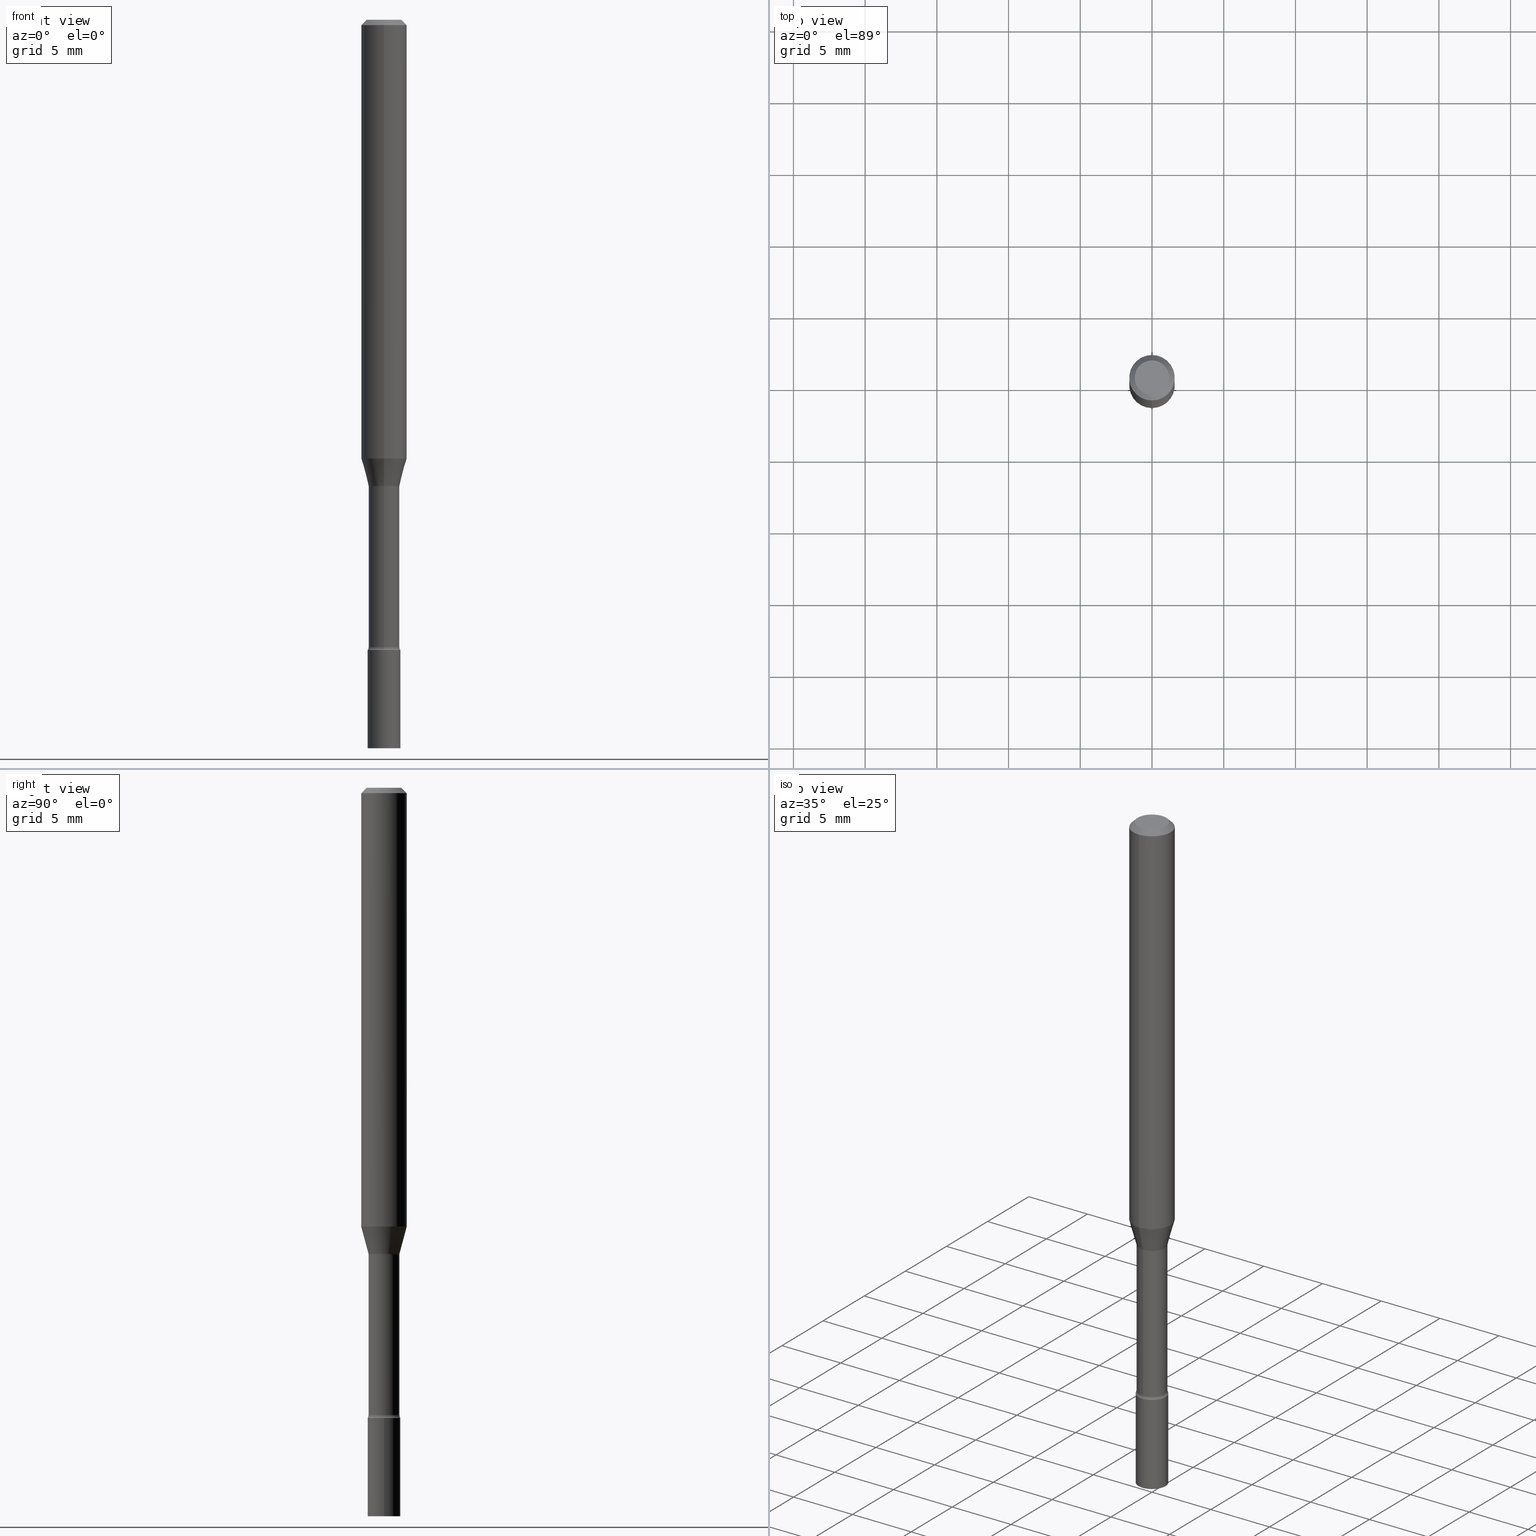
[diagram: canonical four-view strip — front | top / right | iso, engineering-drawing reading convention]
A machine part, canonical four-view strip (front | top / right | iso — engineering-drawing reading convention). The complete STEP part file that produces these views, byte-faithful:
ISO-10303-21;
HEADER;
FILE_DESCRIPTION (( 'STEP AP203' ),
    '1' );
FILE_NAME ('04286.STEP',
    '2024-03-08T22:51:13',
    ( '' ),
    ( '' ),
    'SwSTEP 2.0',
    'SolidWorks 2023',
    '' );
FILE_SCHEMA (( 'CONFIG_CONTROL_DESIGN' ));
ENDSEC;

DATA;
#1 = CARTESIAN_POINT ( 'NONE',  ( 3.316907271900976096E-16, 0.04749999999999999362, -1.802990644847437525E-16 ) ) ;
#2 = CYLINDRICAL_SURFACE ( 'NONE', #75, 0.04229999999999999732 ) ;
#3 = ORIENTED_EDGE ( 'NONE', *, *, #391, .T. ) ;
#4 = CIRCLE ( 'NONE', #222, 0.04499999999999999833 ) ;
#5 = AXIS2_PLACEMENT_3D ( 'NONE', #192, #87, #38 ) ;
#6 = PRODUCT_DEFINITION_SHAPE ( 'NONE', 'NONE',  #90 ) ;
#7 = CARTESIAN_POINT ( 'NONE',  ( 4.440892098500921985E-16, 0.06249999999999582279, -1.204612573687109167 ) ) ;
#8 = CALENDAR_DATE ( 2024, 8, 3 ) ;
#9 = EDGE_CURVE ( 'NONE', #494, #47, #237, .T. ) ;
#10 = PERSON_AND_ORGANIZATION_ROLE ( 'design_owner' ) ;
#11 = ORIENTED_EDGE ( 'NONE', *, *, #72, .F. ) ;
#12 = EDGE_CURVE ( 'NONE', #370, #306, #235, .T. ) ;
#13 = AXIS2_PLACEMENT_3D ( 'NONE', #154, #389, #132 ) ;
#14 = CIRCLE ( 'NONE', #342, 0.04499999999999999833 ) ;
#15 = ORIENTED_EDGE ( 'NONE', *, *, #63, .T. ) ;
#16 = ORIENTED_EDGE ( 'NONE', *, *, #207, .F. ) ;
#17 = CARTESIAN_POINT ( 'NONE',  ( 4.230661034700285954E-29, -6.040262716198641373E-15, -1.729999999999999760 ) ) ;
#18 = APPROVAL_ROLE ( '' ) ;
#19 = EDGE_LOOP ( 'NONE', ( #54, #221 ) ) ;
#20 = FACE_OUTER_BOUND ( 'NONE', #105, .T. ) ;
#21 = CIRCLE ( 'NONE', #145, 0.04749999999999999362 ) ;
#22 = AXIS2_PLACEMENT_3D ( 'NONE', #156, #106, #313 ) ;
#23 = ORIENTED_EDGE ( 'NONE', *, *, #12, .F. ) ;
#24 = DIRECTION ( 'NONE',  ( -6.982962677686265133E-15, -1.000000000000000000, 6.458269488567996591E-15 ) ) ;
#25 = APPROVAL_DATE_TIME ( #512, #193 ) ;
#26 = CARTESIAN_POINT ( 'NONE',  ( 4.209830301234384411E-29, -6.010050874383000873E-15, -1.721414547187247290 ) ) ;
#27 = CALENDAR_DATE ( 2024, 8, 3 ) ;
#28 = ORIENTED_EDGE ( 'NONE', *, *, #111, .T. ) ;
#29 = CARTESIAN_POINT ( 'NONE',  ( -4.287811248607203282E-16, -0.06250000000000005551, -0.01499999999999981209 ) ) ;
#30 = DIRECTION ( 'NONE',  ( 1.000000000000000000, -7.105427357601001070E-15, 4.926313830350955561E-29 ) ) ;
#31 = CARTESIAN_POINT ( 'NONE',  ( -4.364351673553619392E-16, -0.06250000000000417721, -1.204612573687108723 ) ) ;
#32 = TOROIDAL_SURFACE ( 'NONE', #334, 0.05730000000000000371, 0.01500000000000003240 ) ;
#33 = CARTESIAN_POINT ( 'NONE',  ( 4.890937612370273194E-29, -6.982962677686291165E-15, -2.000000000000000000 ) ) ;
#34 = LINE ( 'NONE', #324, #341 ) ;
#35 = DIRECTION ( 'NONE',  ( 1.000000000000000000, -6.982962677686269077E-15, 0.000000000000000000 ) ) ;
#36 = CARTESIAN_POINT ( 'NONE',  ( 0.04499999999999999833, -7.297195998182173641E-15, -2.000000000000000000 ) ) ;
#37 = DIRECTION ( 'NONE',  ( -2.445564497008087352E-29, 3.491344304138296135E-15, 1.000000000000000000 ) ) ;
#38 = DIRECTION ( 'NONE',  ( -6.982962677686265922E-15, -1.000000000000000000, 3.483106191921935554E-15 ) ) ;
#39 = EDGE_CURVE ( 'NONE', #98, #306, #128, .T. ) ;
#40 = CIRCLE ( 'NONE', #397, 0.01500000000000003587 ) ;
#41 = CARTESIAN_POINT ( 'NONE',  ( -4.001237614313916575E-16, -0.05730000000000447929, -1.281974787463810772 ) ) ;
#42 = LINE ( 'NONE', #401, #146 ) ;
#43 = ORIENTED_EDGE ( 'NONE', *, *, #516, .T. ) ;
#44 = CC_DESIGN_PERSON_AND_ORGANIZATION_ASSIGNMENT ( #114, #415, ( #174 ) ) ;
#45 = CARTESIAN_POINT ( 'NONE',  ( -4.364351673553912750E-16, -0.06250000000000005551, -0.01499999999999981209 ) ) ;
#46 =( NAMED_UNIT ( * ) SI_UNIT ( $, .STERADIAN. ) SOLID_ANGLE_UNIT ( ) );
#47 = VERTEX_POINT ( 'NONE', #31 ) ;
#48 = CARTESIAN_POINT ( 'NONE',  ( 3.840629472727447874E-16, 0.04749999999999999362, -1.947592745229183872E-16 ) ) ;
#49 = ORIENTED_EDGE ( 'NONE', *, *, #325, .T. ) ;
#50 = AXIS2_PLACEMENT_3D ( 'NONE', #414, #491, #338 ) ;
#51 = VECTOR ( 'NONE', #233, 39.37007874015748143 ) ;
#52 = PERSON_AND_ORGANIZATION ( #420, #323 ) ;
#53 = CARTESIAN_POINT ( 'NONE',  ( 4.071409875905687408E-16, 0.05729999999999552812, -1.281974787463811216 ) ) ;
#54 = ORIENTED_EDGE ( 'NONE', *, *, #391, .F. ) ;
#55 = DATE_AND_TIME ( #8, #110 ) ;
#56 = ORIENTED_EDGE ( 'NONE', *, *, #226, .T. ) ;
#57 = AXIS2_PLACEMENT_3D ( 'NONE', #427, #121, #435 ) ;
#58 = SECURITY_CLASSIFICATION ( '', '', #69 ) ;
#59 = ORIENTED_EDGE ( 'NONE', *, *, #224, .F. ) ;
#60 = APPROVAL_STATUS ( 'not_yet_approved' ) ;
#61 = ORIENTED_EDGE ( 'NONE', *, *, #79, .F. ) ;
#62 = FACE_OUTER_BOUND ( 'NONE', #89, .T. ) ;
#63 = EDGE_CURVE ( 'NONE', #140, #370, #443, .T. ) ;
#64 = ORIENTED_EDGE ( 'NONE', *, *, #157, .F. ) ;
#65 = DIRECTION ( 'NONE',  ( -2.445564497008087352E-29, 3.491344304138296530E-15, 1.000000000000000000 ) ) ;
#66 = CIRCLE ( 'NONE', #404, 0.06250000000000000000 ) ;
#67 = CARTESIAN_POINT ( 'NONE',  ( -2.989484015155442854E-16, -0.04281111260566843740, -1.278092501787272850 ) ) ;
#68 = DIRECTION ( 'NONE',  ( -6.982962677686265133E-15, -1.000000000000000000, 6.381165607227960443E-15 ) ) ;
#69 = SECURITY_CLASSIFICATION_LEVEL ( 'unclassified' ) ;
#70 = VERTEX_POINT ( 'NONE', #468 ) ;
#71 = EDGE_LOOP ( 'NONE', ( #451, #416, #147, #301 ) ) ;
#72 = EDGE_CURVE ( 'NONE', #153, #309, #240, .T. ) ;
#73 = DIRECTION ( 'NONE',  ( -2.445564497008087352E-29, 3.491344304138296135E-15, 1.000000000000000000 ) ) ;
#74 = CIRCLE ( 'NONE', #488, 0.04499999999999999833 ) ;
#75 = AXIS2_PLACEMENT_3D ( 'NONE', #477, #368, #332 ) ;
#76 = CARTESIAN_POINT ( 'NONE',  ( 4.890937612370273194E-29, -6.982962677686291165E-15, -2.000000000000000000 ) ) ;
#77 = DIRECTION ( 'NONE',  ( 2.445564497008087352E-29, -3.491344304138296530E-15, -1.000000000000000000 ) ) ;
#78 = DIRECTION ( 'NONE',  ( -1.000000000000000000, 6.982962677686265922E-15, -4.883557194083112340E-29 ) ) ;
#79 = EDGE_CURVE ( 'NONE', #430, #70, #4, .T. ) ;
#80 = DIRECTION ( 'NONE',  ( 2.438088387897960049E-29, -3.491481338843145188E-15, -1.000000000000000000 ) ) ;
#81 = MANIFOLD_SOLID_BREP ( 'Body-Move/Copy2[1]', #367 ) ;
#82 = EDGE_CURVE ( 'NONE', #164, #426, #302, .T. ) ;
#83 = DIRECTION ( 'NONE',  ( 6.982962677686265922E-15, 1.000000000000000000, -3.491344304138296135E-15 ) ) ;
#84 = EDGE_LOOP ( 'NONE', ( #402, #490, #172, #28 ) ) ;
#85 = APPROVAL_PERSON_ORGANIZATION ( #52, #369, #408 ) ;
#86 = FACE_OUTER_BOUND ( 'NONE', #126, .T. ) ;
#87 = DIRECTION ( 'NONE',  ( -2.445564497008087352E-29, 3.491344304138296530E-15, 1.000000000000000000 ) ) ;
#88 = DIRECTION ( 'NONE',  ( -2.445564497008087352E-29, 3.491344304138296530E-15, 1.000000000000000000 ) ) ;
#89 = EDGE_LOOP ( 'NONE', ( #115, #133, #343, #11 ) ) ;
#90 = PRODUCT_DEFINITION ( 'UNKNOWN', '', #174, #134 ) ;
#91 = FACE_OUTER_BOUND ( 'NONE', #407, .T. ) ;
#92 = ORIENTED_EDGE ( 'NONE', *, *, #425, .F. ) ;
#93 = VECTOR ( 'NONE', #175, 39.37007874015748143 ) ;
#94 = AXIS2_PLACEMENT_3D ( 'NONE', #165, #77, #363 ) ;
#95 = PLANE ( 'NONE',  #339 ) ;
#96 = ADVANCED_FACE ( 'NONE', ( #429 ), #448, .T. ) ;
#97 = EDGE_CURVE ( 'NONE', #337, #484, #74, .T. ) ;
#98 = VERTEX_POINT ( 'NONE', #101 ) ;
#99 = EDGE_LOOP ( 'NONE', ( #459, #43, #184, #23 ) ) ;
#100 = CIRCLE ( 'NONE', #444, 0.04230000000000001120 ) ;
#101 = CARTESIAN_POINT ( 'NONE',  ( 3.005595772265644158E-16, 0.04229999999999552174, -1.281974787463811216 ) ) ;
#102 = ORIENTED_EDGE ( 'NONE', *, *, #379, .F. ) ;
#103 = DIRECTION ( 'NONE',  ( -6.982962677686266711E-15, -1.000000000000000000, 3.491344304138296530E-15 ) ) ;
#104 = APPROVAL_STATUS ( 'not_yet_approved' ) ;
#105 = EDGE_LOOP ( 'NONE', ( #136, #457 ) ) ;
#106 = DIRECTION ( 'NONE',  ( -2.445564497008087352E-29, 3.491344304138296530E-15, 1.000000000000000000 ) ) ;
#107 = ORIENTED_EDGE ( 'NONE', *, *, #186, .T. ) ;
#108 = FACE_OUTER_BOUND ( 'NONE', #383, .T. ) ;
#109 = VECTOR ( 'NONE', #191, 39.37007874015748143 ) ;
#110 = LOCAL_TIME ( 17, 51, 13.00000000000000000, #171 ) ;
#111 = EDGE_CURVE ( 'NONE', #306, #98, #481, .T. ) ;
#112 = EDGE_LOOP ( 'NONE', ( #461, #265, #255, #417 ) ) ;
#113 = DIRECTION ( 'NONE',  ( -2.445564497008087352E-29, 3.491344304138296530E-15, 1.000000000000000000 ) ) ;
#114 = PERSON_AND_ORGANIZATION ( #420, #323 ) ;
#115 = ORIENTED_EDGE ( 'NONE', *, *, #290, .F. ) ;
#116 = LINE ( 'NONE', #29, #360 ) ;
#117 = PERSON_AND_ORGANIZATION ( #420, #323 ) ;
#118 = DIRECTION ( 'NONE',  ( 1.000000000000000000, -6.982962677686269077E-15, 0.000000000000000000 ) ) ;
#119 = CARTESIAN_POINT ( 'NONE',  ( 4.364351673553919652E-16, 0.06249999999999995143, -0.01500000000000024751 ) ) ;
#120 = AXIS2_PLACEMENT_3D ( 'NONE', #392, #88, #288 ) ;
#121 = DIRECTION ( 'NONE',  ( -2.445564497008087352E-29, 3.491344304138296530E-15, 1.000000000000000000 ) ) ;
#122 = DIRECTION ( 'NONE',  ( -2.445468806185136597E-29, 3.491481338843145583E-15, 1.000000000000000000 ) ) ;
#123 = DIRECTION ( 'NONE',  ( 0.000000000000000000, 0.000000000000000000, 1.000000000000000000 ) ) ;
#124 = DIRECTION ( 'NONE',  ( -2.445468806185136597E-29, 3.491481338843145583E-15, 1.000000000000000000 ) ) ;
#125 = CARTESIAN_POINT ( 'NONE',  ( -2.989484015155442854E-16, -0.04281111260566843740, -1.278092501787272850 ) ) ;
#126 = EDGE_LOOP ( 'NONE', ( #3, #376, #61, #177 ) ) ;
#127 = DIRECTION ( 'NONE',  ( -1.000000000000000000, 6.982962677686265922E-15, -4.876176775795935793E-29 ) ) ;
#128 = CIRCLE ( 'NONE', #412, 0.04229999999999999039 ) ;
#129 = AXIS2_PLACEMENT_3D ( 'NONE', #424, #73, #238 ) ;
#130 = DIRECTION ( 'NONE',  ( 2.445564497008087352E-29, -3.491344304138296135E-15, -1.000000000000000000 ) ) ;
#131 = EDGE_CURVE ( 'NONE', #340, #98, #281, .T. ) ;
#132 = DIRECTION ( 'NONE',  ( 1.000000000000000000, -6.982962677686266711E-15, 4.876176775795935793E-29 ) ) ;
#133 = ORIENTED_EDGE ( 'NONE', *, *, #207, .T. ) ;
#134 = DESIGN_CONTEXT ( 'detailed design', #213, 'design' ) ;
#135 = DIRECTION ( 'NONE',  ( -2.445564497008087352E-29, 3.491344304138296530E-15, 1.000000000000000000 ) ) ;
#136 = ORIENTED_EDGE ( 'NONE', *, *, #82, .F. ) ;
#137 = CONICAL_SURFACE ( 'NONE', #432, 0.06250000000000000000, 0.7853981633974483900 ) ;
#138 = AXIS2_PLACEMENT_3D ( 'NONE', #475, #519, #293 ) ;
#139 = LINE ( 'NONE', #486, #93 ) ;
#140 = VERTEX_POINT ( 'NONE', #476 ) ;
#141 = CARTESIAN_POINT ( 'NONE',  ( 7.072675257727984556E-46, -1.009711439068490745E-31, -2.892042007634933116E-17 ) ) ;
#142 = CC_DESIGN_DATE_AND_TIME_ASSIGNMENT ( #502, #378, ( #90 ) ) ;
#143 = ORIENTED_EDGE ( 'NONE', *, *, #279, .T. ) ;
#144 = VERTEX_POINT ( 'NONE', #7 ) ;
#145 = AXIS2_PLACEMENT_3D ( 'NONE', #141, #227, #103 ) ;
#146 = VECTOR ( 'NONE', #206, 39.37007874015748143 ) ;
#147 = ORIENTED_EDGE ( 'NONE', *, *, #375, .T. ) ;
#148 = ORIENTED_EDGE ( 'NONE', *, *, #9, .T. ) ;
#149 = DIRECTION ( 'NONE',  ( -6.982962677686265922E-15, -1.000000000000000000, 3.491344304138296530E-15 ) ) ;
#150 = ORIENTED_EDGE ( 'NONE', *, *, #304, .F. ) ;
#151 = CARTESIAN_POINT ( 'NONE',  ( -3.773273898774340269E-16, -0.04749999999999999362, 1.369184343702197742E-16 ) ) ;
#152 = DATE_AND_TIME ( #27, #353 ) ;
#153 = VERTEX_POINT ( 'NONE', #170 ) ;
#154 = CARTESIAN_POINT ( 'NONE',  ( 0.000000000000000000, 0.000000000000000000, 0.000000000000000000 ) ) ;
#155 = DIRECTION ( 'NONE',  ( -6.982962677686265922E-15, -1.000000000000000000, 3.483106191921935554E-15 ) ) ;
#156 = CARTESIAN_POINT ( 'NONE',  ( 3.135029353058570194E-29, -4.475991047297303565E-15, -1.281974787463810994 ) ) ;
#157 = EDGE_CURVE ( 'NONE', #340, #144, #139, .T. ) ;
#158 = CARTESIAN_POINT ( 'NONE',  ( 3.125657646263201174E-29, -4.462260976276861974E-15, -1.278092501787273072 ) ) ;
#159 = CONICAL_SURFACE ( 'NONE', #359, 0.04281111260566396876, 0.2617993877991502960 ) ;
#160 = CARTESIAN_POINT ( 'NONE',  ( 4.230661034700285954E-29, -6.040262716198641373E-15, -1.729999999999999760 ) ) ;
#161 = CARTESIAN_POINT ( 'NONE',  ( 0.000000000000000000, 0.000000000000000000, 0.000000000000000000 ) ) ;
#162 = CARTESIAN_POINT ( 'NONE',  ( 3.741402302838724935E-16, 0.04281111260565950705, -1.278092501787273294 ) ) ;
#163 =( CONVERSION_BASED_UNIT ( 'INCH', #254 ) LENGTH_UNIT ( ) NAMED_UNIT ( #284 ) );
#164 = VERTEX_POINT ( 'NONE', #300 ) ;
#165 = CARTESIAN_POINT ( 'NONE',  ( 3.668346745512138210E-31, -5.237016456207455099E-17, -0.01500000000000003067 ) ) ;
#166 = ORIENTED_EDGE ( 'NONE', *, *, #97, .T. ) ;
#167 = VECTOR ( 'NONE', #37, 39.37007874015748143 ) ;
#168 =( NAMED_UNIT ( * ) PLANE_ANGLE_UNIT ( ) SI_UNIT ( $, .RADIAN. ) );
#169 = ADVANCED_FACE ( 'NONE', ( #91 ), #195, .F. ) ;
#170 = CARTESIAN_POINT ( 'NONE',  ( 4.440892098500922971E-16, 0.06249999999999995143, -0.01500000000000024751 ) ) ;
#171 = COORDINATED_UNIVERSAL_TIME_OFFSET ( 5, 0, .BEHIND. ) ;
#172 = ORIENTED_EDGE ( 'NONE', *, *, #371, .T. ) ;
#173 = ADVANCED_FACE ( 'NONE', ( #264 ), #95, .T. ) ;
#174 = PRODUCT_DEFINITION_FORMATION_WITH_SPECIFIED_SOURCE ( 'ANY', '', #199, .NOT_KNOWN. ) ;
#175 = DIRECTION ( 'NONE',  ( 1.839019923739600315E-15, 0.2588190451025249583, 0.9659258262890670910 ) ) ;
#176 = ORIENTED_EDGE ( 'NONE', *, *, #516, .F. ) ;
#177 = ORIENTED_EDGE ( 'NONE', *, *, #394, .F. ) ;
#178 = CARTESIAN_POINT ( 'NONE',  ( 3.135152026280984204E-29, -4.475815372260679983E-15, -1.281974787463810994 ) ) ;
#179 = CC_DESIGN_PERSON_AND_ORGANIZATION_ASSIGNMENT ( #219, #10, ( #199 ) ) ;
#180 = ORIENTED_EDGE ( 'NONE', *, *, #304, .T. ) ;
#181 = CIRCLE ( 'NONE', #473, 0.04281111260566396876 ) ;
#182 =( GEOMETRIC_REPRESENTATION_CONTEXT ( 3 ) GLOBAL_UNCERTAINTY_ASSIGNED_CONTEXT ( ( #406 ) ) GLOBAL_UNIT_ASSIGNED_CONTEXT ( ( #163, #168, #46 ) ) REPRESENTATION_CONTEXT ( 'NONE', 'WORKASPACE' ) );
#183 = DIRECTION ( 'NONE',  ( -6.982962677686265922E-15, -1.000000000000000000, 4.370956789862821150E-15 ) ) ;
#184 = ORIENTED_EDGE ( 'NONE', *, *, #111, .F. ) ;
#185 = CARTESIAN_POINT ( 'NONE',  ( 0.04499999999999999833, -6.354496036694523059E-15, -1.729999999999999760 ) ) ;
#186 = EDGE_CURVE ( 'NONE', #225, #500, #21, .T. ) ;
#187 = PERSON_AND_ORGANIZATION_ROLE ( 'classification_officer' ) ;
#188 = DIRECTION ( 'NONE',  ( -6.982962677686265133E-15, -1.000000000000000000, 6.458269488567996591E-15 ) ) ;
#189 = DIRECTION ( 'NONE',  ( 6.982962677686265922E-15, 1.000000000000000000, -3.483106191921935554E-15 ) ) ;
#190 = APPROVAL_DATE_TIME ( #196, #328 ) ;
#191 = DIRECTION ( 'NONE',  ( -2.445564497008087352E-29, 3.491344304138296135E-15, 1.000000000000000000 ) ) ;
#192 = CARTESIAN_POINT ( 'NONE',  ( 3.668346745512138210E-31, -5.237016456207455099E-17, -0.01500000000000003067 ) ) ;
#193 = APPROVAL ( #104, 'UNSPECIFIED' ) ;
#194 = DIRECTION ( 'NONE',  ( -4.851104656540964275E-15, -0.7071067811865500152, -0.7071067811865450192 ) ) ;
#195 = TOROIDAL_SURFACE ( 'NONE', #50, 0.05730000000000004534, 0.01500000000000003414 ) ;
#196 = DATE_AND_TIME ( #384, #517 ) ;
#197 = AXIS2_PLACEMENT_3D ( 'NONE', #280, #80, #127 ) ;
#198 = DIRECTION ( 'NONE',  ( -2.445564497008087352E-29, 3.491344304138296530E-15, 1.000000000000000000 ) ) ;
#199 = PRODUCT ( '04286', '04286', '', ( #326 ) ) ;
#200 = CARTESIAN_POINT ( 'NONE',  ( 2.945957742858732346E-29, -4.205717247835861609E-15, -1.204612573687108945 ) ) ;
#201 = DIRECTION ( 'NONE',  ( 1.000000000000000000, -6.982962677686266711E-15, 4.876176775795935793E-29 ) ) ;
#202 = DIRECTION ( 'NONE',  ( 7.105427357600997914E-15, 1.000000000000000000, 0.000000000000000000 ) ) ;
#203 = ADVANCED_FACE ( 'NONE', ( #108 ), #137, .T. ) ;
#204 = CARTESIAN_POINT ( 'NONE',  ( -0.04499999999999999833, 3.197442310920450718E-16, -2.213520790614707560E-30 ) ) ;
#205 = CC_DESIGN_APPROVAL ( #369, ( #90 ) ) ;
#206 = DIRECTION ( 'NONE',  ( -2.445564497008087352E-29, 3.491344304138296135E-15, 1.000000000000000000 ) ) ;
#207 = EDGE_CURVE ( 'NONE', #144, #47, #66, .T. ) ;
#208 = LINE ( 'NONE', #119, #271 ) ;
#209 = DIRECTION ( 'NONE',  ( -6.982962677686266711E-15, -1.000000000000000000, 3.491344304138296530E-15 ) ) ;
#210 = DIRECTION ( 'NONE',  ( 4.937700262164548042E-15, 0.7071067811865451302, -0.7071067811865499042 ) ) ;
#211 = EDGE_CURVE ( 'NONE', #494, #340, #181, .T. ) ;
#212 = DIRECTION ( 'NONE',  ( -2.445564497008087352E-29, 3.491344304138296530E-15, 1.000000000000000000 ) ) ;
#213 = APPLICATION_CONTEXT ( 'configuration controlled 3d designs of mechanical parts and assemblies' ) ;
#214 = AXIS2_PLACEMENT_3D ( 'NONE', #53, #30, #202 ) ;
#215 = ORIENTED_EDGE ( 'NONE', *, *, #224, .T. ) ;
#216 = AXIS2_PLACEMENT_3D ( 'NONE', #253, #292, #395 ) ;
#217 = APPROVAL_STATUS ( 'not_yet_approved' ) ;
#218 = ADVANCED_FACE ( 'NONE', ( #498 ), #159, .T. ) ;
#219 = PERSON_AND_ORGANIZATION ( #420, #323 ) ;
#220 = ORIENTED_EDGE ( 'NONE', *, *, #39, .F. ) ;
#221 = ORIENTED_EDGE ( 'NONE', *, *, #97, .F. ) ;
#222 = AXIS2_PLACEMENT_3D ( 'NONE', #319, #470, #118 ) ;
#223 = CONICAL_SURFACE ( 'NONE', #510, 0.04281111260566396876, 0.2617993877991502960 ) ;
#224 = EDGE_CURVE ( 'NONE', #47, #144, #270, .T. ) ;
#225 = VERTEX_POINT ( 'NONE', #151 ) ;
#226 = EDGE_CURVE ( 'NONE', #140, #426, #40, .T. ) ;
#227 = DIRECTION ( 'NONE',  ( -2.445564497008087352E-29, 3.491344304138296530E-15, 1.000000000000000000 ) ) ;
#228 = ORIENTED_EDGE ( 'NONE', *, *, #157, .T. ) ;
#229 = EDGE_LOOP ( 'NONE', ( #315, #180 ) ) ;
#230 = LOCAL_TIME ( 17, 51, 13.00000000000000000, #495 ) ;
#231 = COORDINATED_UNIVERSAL_TIME_OFFSET ( 5, 0, .BEHIND. ) ;
#232 = ADVANCED_FACE ( 'NONE', ( #316 ), #311, .F. ) ;
#233 = DIRECTION ( 'NONE',  ( -1.807323732225330139E-15, -0.2588190451025181860, 0.9659258262890689783 ) ) ;
#234 = DIRECTION ( 'NONE',  ( 1.000000000000000000, -7.105427357601001070E-15, 4.926313830350955561E-29 ) ) ;
#235 = LINE ( 'NONE', #385, #109 ) ;
#236 = PERSON_AND_ORGANIZATION_ROLE ( 'creator' ) ;
#237 = LINE ( 'NONE', #67, #51 ) ;
#238 = DIRECTION ( 'NONE',  ( -6.982962677686265922E-15, -1.000000000000000000, 3.491344304138296135E-15 ) ) ;
#239 = ADVANCED_FACE ( 'NONE', ( #62 ), #428, .T. ) ;
#240 = CIRCLE ( 'NONE', #249, 0.06250000000000000000 ) ;
#241 = CIRCLE ( 'NONE', #433, 0.01500000000000003587 ) ;
#242 = CARTESIAN_POINT ( 'NONE',  ( -4.001237614313812543E-16, -0.05730000000000605442, -1.721414547187247068 ) ) ;
#243 = LINE ( 'NONE', #474, #167 ) ;
#244 = EDGE_CURVE ( 'NONE', #370, #140, #100, .T. ) ;
#245 = FACE_OUTER_BOUND ( 'NONE', #336, .T. ) ;
#246 = CARTESIAN_POINT ( 'NONE',  ( -2.953793212660870466E-16, -0.04230000000000602028, -1.721414547187247068 ) ) ;
#247 = FACE_OUTER_BOUND ( 'NONE', #455, .T. ) ;
#248 = PLANE ( 'NONE',  #197 ) ;
#249 = AXIS2_PLACEMENT_3D ( 'NONE', #276, #513, #155 ) ;
#250 = AXIS2_PLACEMENT_3D ( 'NONE', #377, #344, #68 ) ;
#251 = PLANE ( 'NONE',  #496 ) ;
#252 = LINE ( 'NONE', #204, #449 ) ;
#253 = CARTESIAN_POINT ( 'NONE',  ( 0.000000000000000000, 0.000000000000000000, 0.000000000000000000 ) ) ;
#254 = LENGTH_MEASURE_WITH_UNIT ( LENGTH_MEASURE( 0.02539999999999999897 ), #361 );
#255 = ORIENTED_EDGE ( 'NONE', *, *, #39, .T. ) ;
#256 = EDGE_CURVE ( 'NONE', #225, #309, #116, .T. ) ;
#257 = DIRECTION ( 'NONE',  ( 1.000000000000000000, -6.982962677686269077E-15, 0.000000000000000000 ) ) ;
#258 = CIRCLE ( 'NONE', #422, 0.04749999999999999362 ) ;
#259 = DIRECTION ( 'NONE',  ( 1.000000000000000000, -6.982962677686265922E-15, 4.876176775795935793E-29 ) ) ;
#260 = DIRECTION ( 'NONE',  ( -6.982962677686266711E-15, -1.000000000000000000, 6.458269488567999747E-15 ) ) ;
#261 = EDGE_LOOP ( 'NONE', ( #335, #267, #413, #273 ) ) ;
#262 = ORIENTED_EDGE ( 'NONE', *, *, #9, .F. ) ;
#263 = CIRCLE ( 'NONE', #405, 0.01500000000000003587 ) ;
#264 = FACE_OUTER_BOUND ( 'NONE', #229, .T. ) ;
#265 = ORIENTED_EDGE ( 'NONE', *, *, #131, .T. ) ;
#266 = DIRECTION ( 'NONE',  ( -6.982962677686265133E-15, -1.000000000000000000, 6.381165607227960443E-15 ) ) ;
#267 = ORIENTED_EDGE ( 'NONE', *, *, #244, .F. ) ;
#268 = CALENDAR_DATE ( 2024, 8, 3 ) ;
#269 = EDGE_LOOP ( 'NONE', ( #452, #228, #59, #262 ) ) ;
#270 = CIRCLE ( 'NONE', #322, 0.06250000000000000000 ) ;
#271 = VECTOR ( 'NONE', #210, 39.37007874015748143 ) ;
#272 = DIRECTION ( 'NONE',  ( 2.445564497008087352E-29, -3.491344304138296530E-15, -1.000000000000000000 ) ) ;
#273 = ORIENTED_EDGE ( 'NONE', *, *, #82, .T. ) ;
#274 = CARTESIAN_POINT ( 'NONE',  ( 3.668346745512138210E-31, -5.237016456207455099E-17, -0.01500000000000003067 ) ) ;
#275 = APPROVAL_ROLE ( '' ) ;
#276 = CARTESIAN_POINT ( 'NONE',  ( 3.668346745512138210E-31, -5.237016456207455099E-17, -0.01500000000000003067 ) ) ;
#277 = CARTESIAN_POINT ( 'NONE',  ( 3.125657646263201174E-29, -4.462260976276861974E-15, -1.278092501787273072 ) ) ;
#278 = CARTESIAN_POINT ( 'NONE',  ( 4.230826579823990755E-29, -6.040025646159252054E-15, -1.729999999999999760 ) ) ;
#279 = EDGE_CURVE ( 'NONE', #340, #494, #283, .T. ) ;
#280 = CARTESIAN_POINT ( 'NONE',  ( 3.142333204959308423E-16, 0.04499999999999301781, -2.000000000000000444 ) ) ;
#281 = CIRCLE ( 'NONE', #214, 0.01500000000000003587 ) ;
#282 = CLOSED_SHELL ( 'NONE', ( #232, #493, #169, #203, #504, #218, #318, #239, #471, #520, #287, #446, #485, #409 ) ) ;
#283 = CIRCLE ( 'NONE', #250, 0.04281111260566396876 ) ;
#284 = DIMENSIONAL_EXPONENTS ( 1.000000000000000000, 0.000000000000000000, 0.000000000000000000, 0.000000000000000000, 0.000000000000000000, 0.000000000000000000, 0.000000000000000000 ) ;
#285 = DIRECTION ( 'NONE',  ( 1.000000000000000000, -6.982962677686269077E-15, 0.000000000000000000 ) ) ;
#286 = CC_DESIGN_PERSON_AND_ORGANIZATION_ASSIGNMENT ( #506, #236, ( #90 ) ) ;
#287 = ADVANCED_FACE ( 'NONE', ( #20 ), #501, .F. ) ;
#288 = DIRECTION ( 'NONE',  ( -6.982962677686265922E-15, -1.000000000000000000, 3.491344304138296530E-15 ) ) ;
#289 = CARTESIAN_POINT ( 'NONE',  ( -0.04499999999999999833, -6.191868465850420113E-15, -2.000000000000000000 ) ) ;
#290 = EDGE_CURVE ( 'NONE', #144, #153, #34, .T. ) ;
#291 = DIRECTION ( 'NONE',  ( -2.445468806185136597E-29, 3.491481338843145583E-15, 1.000000000000000000 ) ) ;
#292 = DIRECTION ( 'NONE',  ( -2.445564497008087352E-29, 3.491344304138296530E-15, 1.000000000000000000 ) ) ;
#293 = DIRECTION ( 'NONE',  ( -6.982962677686265133E-15, -1.000000000000000000, 6.070773319253918263E-15 ) ) ;
#294 = CIRCLE ( 'NONE', #138, 0.04499999999999999833 ) ;
#295 = ADVANCED_FACE ( 'NONE', ( #362 ), #248, .T. ) ;
#296 = CONICAL_SURFACE ( 'NONE', #94, 0.06250000000000000000, 0.7853981633974483900 ) ;
#297 = DIRECTION ( 'NONE',  ( -2.438088387897960049E-29, 3.491481338843145188E-15, 1.000000000000000000 ) ) ;
#298 = EDGE_LOOP ( 'NONE', ( #421, #107 ) ) ;
#299 = ORIENTED_EDGE ( 'NONE', *, *, #440, .F. ) ;
#300 = CARTESIAN_POINT ( 'NONE',  ( -3.142333204958397289E-16, -0.04500000000000605599, -1.729999999999999538 ) ) ;
#301 = ORIENTED_EDGE ( 'NONE', *, *, #72, .T. ) ;
#302 = CIRCLE ( 'NONE', #380, 0.04499999999999999833 ) ;
#303 = ORIENTED_EDGE ( 'NONE', *, *, #460, .T. ) ;
#304 = EDGE_CURVE ( 'NONE', #70, #430, #482, .T. ) ;
#305 = DIRECTION ( 'NONE',  ( -6.982962677686265922E-15, -1.000000000000000000, 4.370956789862821150E-15 ) ) ;
#306 = VERTEX_POINT ( 'NONE', #396 ) ;
#307 = DIRECTION ( 'NONE',  ( -2.445564497008087352E-29, 3.491344304138296530E-15, 1.000000000000000000 ) ) ;
#308 = PERSON_AND_ORGANIZATION_ROLE ( 'design_supplier' ) ;
#309 = VERTEX_POINT ( 'NONE', #45 ) ;
#310 = DIRECTION ( 'NONE',  ( -1.000000000000000000, 6.982962677686265922E-15, -4.883557194083112340E-29 ) ) ;
#311 = TOROIDAL_SURFACE ( 'NONE', #22, 0.05730000000000000371, 0.01500000000000003240 ) ;
#312 = APPROVAL_PERSON_ORGANIZATION ( #354, #193, #18 ) ;
#313 = DIRECTION ( 'NONE',  ( -6.982962677686265922E-15, -1.000000000000000000, 3.491344304138296530E-15 ) ) ;
#314 = PERSON_AND_ORGANIZATION ( #420, #323 ) ;
#315 = ORIENTED_EDGE ( 'NONE', *, *, #79, .T. ) ;
#316 = FACE_OUTER_BOUND ( 'NONE', #112, .T. ) ;
#317 = COORDINATED_UNIVERSAL_TIME_OFFSET ( 5, 0, .BEHIND. ) ;
#318 = ADVANCED_FACE ( 'NONE', ( #393 ), #223, .T. ) ;
#319 = CARTESIAN_POINT ( 'NONE',  ( 4.230661034700285954E-29, -6.040262716198641373E-15, -1.729999999999999760 ) ) ;
#320 = DIRECTION ( 'NONE',  ( -2.445564497008087352E-29, 3.491344304138296530E-15, 1.000000000000000000 ) ) ;
#321 = DIRECTION ( 'NONE',  ( -6.982962677686265922E-15, -1.000000000000000000, 3.491344304138296530E-15 ) ) ;
#322 = AXIS2_PLACEMENT_3D ( 'NONE', #419, #65, #305 ) ;
#323 = ORGANIZATION ( 'UNSPECIFIED', 'UNSPECIFIED', '' ) ;
#324 = CARTESIAN_POINT ( 'NONE',  ( 4.440892098500625669E-16, 0.06250000000000000000, -2.182090190086435331E-16 ) ) ;
#325 = EDGE_CURVE ( 'NONE', #426, #164, #294, .T. ) ;
#326 = MECHANICAL_CONTEXT ( 'NONE', #436, 'mechanical' ) ;
#327 = DIRECTION ( 'NONE',  ( -2.445468806185136877E-29, 3.491481338843145188E-15, 1.000000000000000000 ) ) ;
#328 = APPROVAL ( #60, 'UNSPECIFIED' ) ;
#329 = CARTESIAN_POINT ( 'NONE',  ( 7.072675257727984556E-46, -1.009711439068490745E-31, -2.892042007634933116E-17 ) ) ;
#330 = CIRCLE ( 'NONE', #5, 0.06250000000000000000 ) ;
#331 = ADVANCED_FACE ( 'NONE', ( #86 ), #400, .T. ) ;
#332 = DIRECTION ( 'NONE',  ( -6.982962677686266711E-15, -1.000000000000000000, 3.491344304138296924E-15 ) ) ;
#333 = APPLICATION_PROTOCOL_DEFINITION ( 'international standard', 'config_control_design', 1994, #213 ) ;
#334 = AXIS2_PLACEMENT_3D ( 'NONE', #357, #514, #321 ) ;
#335 = ORIENTED_EDGE ( 'NONE', *, *, #226, .F. ) ;
#336 = EDGE_LOOP ( 'NONE', ( #215, #492, #509, #92 ) ) ;
#337 = VERTEX_POINT ( 'NONE', #289 ) ;
#338 = DIRECTION ( 'NONE',  ( -6.982962677686265922E-15, -1.000000000000000000, 3.491344304138296135E-15 ) ) ;
#339 = AXIS2_PLACEMENT_3D ( 'NONE', #17, #297, #259 ) ;
#340 = VERTEX_POINT ( 'NONE', #162 ) ;
#341 = VECTOR ( 'NONE', #518, 39.37007874015748143 ) ;
#342 = AXIS2_PLACEMENT_3D ( 'NONE', #76, #364, #285 ) ;
#343 = ORIENTED_EDGE ( 'NONE', *, *, #425, .T. ) ;
#344 = DIRECTION ( 'NONE',  ( -2.445564497008087352E-29, 3.491344304138296530E-15, 1.000000000000000000 ) ) ;
#345 = DATE_TIME_ROLE ( 'classification_date' ) ;
#346 = DIRECTION ( 'NONE',  ( -2.445564497008087352E-29, 3.491344304138296530E-15, 1.000000000000000000 ) ) ;
#347 = CARTESIAN_POINT ( 'NONE',  ( 4.071409875905797848E-16, 0.05729999999999403626, -1.721414547187247512 ) ) ;
#348 = SHAPE_DEFINITION_REPRESENTATION ( #6, #350 ) ;
#349 = DIRECTION ( 'NONE',  ( -6.982962677686266711E-15, -1.000000000000000000, 6.458269488567999747E-15 ) ) ;
#350 = ADVANCED_BREP_SHAPE_REPRESENTATION ( '04286', ( #81, #418, #462 ), #182 ) ;
#351 = AXIS2_PLACEMENT_3D ( 'NONE', #465, #386, #149 ) ;
#352 = DIRECTION ( 'NONE',  ( 7.105427357601001859E-15, 1.000000000000000000, 0.000000000000000000 ) ) ;
#353 = LOCAL_TIME ( 17, 51, 13.00000000000000000, #231 ) ;
#354 = PERSON_AND_ORGANIZATION ( #420, #323 ) ;
#355 = DIRECTION ( 'NONE',  ( -2.445564497008087352E-29, 3.491344304138296530E-15, 1.000000000000000000 ) ) ;
#356 = DIRECTION ( 'NONE',  ( -2.445564497008087352E-29, 3.491344304138296530E-15, 1.000000000000000000 ) ) ;
#357 = CARTESIAN_POINT ( 'NONE',  ( 3.135029353058570194E-29, -4.475991047297303565E-15, -1.281974787463810994 ) ) ;
#358 = CARTESIAN_POINT ( 'NONE',  ( 3.197442310920874238E-16, 0.04499999999999396844, -1.730000000000000204 ) ) ;
#359 = AXIS2_PLACEMENT_3D ( 'NONE', #277, #307, #511 ) ;
#360 = VECTOR ( 'NONE', #194, 39.37007874015748143 ) ;
#361 =( LENGTH_UNIT ( ) NAMED_UNIT ( * ) SI_UNIT ( $, .METRE. ) );
#362 = FACE_OUTER_BOUND ( 'NONE', #19, .T. ) ;
#363 = DIRECTION ( 'NONE',  ( 6.982962677686265922E-15, 1.000000000000000000, -3.483106191921935554E-15 ) ) ;
#364 = DIRECTION ( 'NONE',  ( -2.445468806185136597E-29, 3.491481338843145583E-15, 1.000000000000000000 ) ) ;
#365 = APPLICATION_PROTOCOL_DEFINITION ( 'international standard', 'config_control_design', 1994, #436 ) ;
#366 = ORIENTED_EDGE ( 'NONE', *, *, #186, .F. ) ;
#367 = CLOSED_SHELL ( 'NONE', ( #331, #173, #96, #295 ) ) ;
#368 = DIRECTION ( 'NONE',  ( -2.445564497008087352E-29, 3.491344304138296530E-15, 1.000000000000000000 ) ) ;
#369 = APPROVAL ( #217, 'UNSPECIFIED' ) ;
#370 = VERTEX_POINT ( 'NONE', #246 ) ;
#371 = EDGE_CURVE ( 'NONE', #494, #306, #263, .T. ) ;
#372 = LOCAL_TIME ( 17, 51, 13.00000000000000000, #317 ) ;
#373 = EDGE_LOOP ( 'NONE', ( #102, #166, #382, #150 ) ) ;
#374 = EDGE_LOOP ( 'NONE', ( #64, #143, #148, #16 ) ) ;
#375 = EDGE_CURVE ( 'NONE', #500, #153, #208, .T. ) ;
#376 = ORIENTED_EDGE ( 'NONE', *, *, #379, .T. ) ;
#377 = CARTESIAN_POINT ( 'NONE',  ( 3.125657646263201174E-29, -4.462260976276861974E-15, -1.278092501787273072 ) ) ;
#378 = DATE_TIME_ROLE ( 'creation_date' ) ;
#379 = EDGE_CURVE ( 'NONE', #337, #70, #252, .T. ) ;
#380 = AXIS2_PLACEMENT_3D ( 'NONE', #278, #346, #503 ) ;
#381 = PRODUCT_RELATED_PRODUCT_CATEGORY ( 'detail', '', ( #199 ) ) ;
#382 = ORIENTED_EDGE ( 'NONE', *, *, #394, .T. ) ;
#383 = EDGE_LOOP ( 'NONE', ( #366, #410, #303, #403 ) ) ;
#384 = CALENDAR_DATE ( 2024, 8, 3 ) ;
#385 = CARTESIAN_POINT ( 'NONE',  ( -2.953793212661290535E-16, -0.04229999999999999732, 1.476838640650499535E-16 ) ) ;
#386 = DIRECTION ( 'NONE',  ( -2.445564497008087352E-29, 3.491344304138296530E-15, 1.000000000000000000 ) ) ;
#387 = COORDINATED_UNIVERSAL_TIME_OFFSET ( 5, 0, .BEHIND. ) ;
#388 = CARTESIAN_POINT ( 'NONE',  ( 3.135152026280984204E-29, -4.475815372260679983E-15, -1.281974787463810994 ) ) ;
#389 = DIRECTION ( 'NONE',  ( -2.445468806185136597E-29, 3.491481338843145583E-15, 1.000000000000000000 ) ) ;
#390 = DIRECTION ( 'NONE',  ( -6.982962677686263555E-15, -1.000000000000000000, 0.000000000000000000 ) ) ;
#391 = EDGE_CURVE ( 'NONE', #484, #337, #14, .T. ) ;
#392 = CARTESIAN_POINT ( 'NONE',  ( 0.000000000000000000, 0.000000000000000000, 0.000000000000000000 ) ) ;
#393 = FACE_OUTER_BOUND ( 'NONE', #374, .T. ) ;
#394 = EDGE_CURVE ( 'NONE', #484, #430, #479, .T. ) ;
#395 = DIRECTION ( 'NONE',  ( -6.982962677686266711E-15, -1.000000000000000000, 3.491344304138296924E-15 ) ) ;
#396 = CARTESIAN_POINT ( 'NONE',  ( -2.953793212660976469E-16, -0.04230000000000446597, -1.281974787463810772 ) ) ;
#397 = AXIS2_PLACEMENT_3D ( 'NONE', #347, #234, #352 ) ;
#398 = TOROIDAL_SURFACE ( 'NONE', #57, 0.05730000000000004534, 0.01500000000000003414 ) ;
#399 = APPROVAL_PERSON_ORGANIZATION ( #117, #328, #275 ) ;
#400 = CYLINDRICAL_SURFACE ( 'NONE', #454, 0.04499999999999999833 ) ;
#401 = CARTESIAN_POINT ( 'NONE',  ( 3.005595772265223103E-16, 0.04229999999999999732, -1.476838640650499535E-16 ) ) ;
#402 = ORIENTED_EDGE ( 'NONE', *, *, #131, .F. ) ;
#403 = ORIENTED_EDGE ( 'NONE', *, *, #375, .F. ) ;
#404 = AXIS2_PLACEMENT_3D ( 'NONE', #200, #356, #183 ) ;
#405 = AXIS2_PLACEMENT_3D ( 'NONE', #41, #78, #390 ) ;
#406 = UNCERTAINTY_MEASURE_WITH_UNIT (LENGTH_MEASURE( 1.000000000000000082E-05 ), #163, 'distance_accuracy_value', 'NONE');
#407 = EDGE_LOOP ( 'NONE', ( #478, #56, #49, #299 ) ) ;
#408 = APPROVAL_ROLE ( '' ) ;
#409 = ADVANCED_FACE ( 'NONE', ( #442 ), #32, .F. ) ;
#410 = ORIENTED_EDGE ( 'NONE', *, *, #256, .T. ) ;
#411 = CC_DESIGN_PERSON_AND_ORGANIZATION_ASSIGNMENT ( #499, #187, ( #58 ) ) ;
#412 = AXIS2_PLACEMENT_3D ( 'NONE', #388, #198, #349 ) ;
#413 = ORIENTED_EDGE ( 'NONE', *, *, #440, .T. ) ;
#414 = CARTESIAN_POINT ( 'NONE',  ( 4.209665577659725366E-29, -6.010286767917396835E-15, -1.721414547187247290 ) ) ;
#415 = PERSON_AND_ORGANIZATION_ROLE ( 'creator' ) ;
#416 = ORIENTED_EDGE ( 'NONE', *, *, #487, .F. ) ;
#417 = ORIENTED_EDGE ( 'NONE', *, *, #371, .F. ) ;
#418 = MANIFOLD_SOLID_BREP ( 'Body-Move/Copy2[2]', #282 ) ;
#419 = CARTESIAN_POINT ( 'NONE',  ( 2.945957742858732346E-29, -4.205717247835861609E-15, -1.204612573687108945 ) ) ;
#420 = PERSON ( 'UNSPECIFIED', 'UNSPECIFIED', 'UNSPECIFIED', ('UNSPECIFIED'), ('UNSPECIFIED'), ('UNSPECIFIED') ) ;
#421 = ORIENTED_EDGE ( 'NONE', *, *, #487, .T. ) ;
#422 = AXIS2_PLACEMENT_3D ( 'NONE', #329, #212, #209 ) ;
#423 = CC_DESIGN_APPROVAL ( #193, ( #174 ) ) ;
#424 = CARTESIAN_POINT ( 'NONE',  ( 3.142333204959242356E-16, 0.04499999999999395456, -1.730000000000000204 ) ) ;
#425 = EDGE_CURVE ( 'NONE', #47, #309, #243, .T. ) ;
#426 = VERTEX_POINT ( 'NONE', #358 ) ;
#427 = CARTESIAN_POINT ( 'NONE',  ( 4.209665577659725366E-29, -6.010286767917396835E-15, -1.721414547187247290 ) ) ;
#428 = CYLINDRICAL_SURFACE ( 'NONE', #351, 0.06250000000000000000 ) ;
#429 = FACE_OUTER_BOUND ( 'NONE', #373, .T. ) ;
#430 = VERTEX_POINT ( 'NONE', #185 ) ;
#431 = DIRECTION ( 'NONE',  ( -6.982962677686268288E-15, -1.000000000000000000, 0.000000000000000000 ) ) ;
#432 = AXIS2_PLACEMENT_3D ( 'NONE', #274, #272, #189 ) ;
#433 = AXIS2_PLACEMENT_3D ( 'NONE', #242, #310, #431 ) ;
#434 = DIRECTION ( 'NONE',  ( -2.445468806185136877E-29, 3.491481338843145188E-15, 1.000000000000000000 ) ) ;
#435 = DIRECTION ( 'NONE',  ( -6.982962677686265922E-15, -1.000000000000000000, 3.491344304138296135E-15 ) ) ;
#436 = APPLICATION_CONTEXT ( 'configuration controlled 3d designs of mechanical parts and assemblies' ) ;
#437 = CARTESIAN_POINT ( 'NONE',  ( 0.04499999999999999833, -3.142333204958819823E-16, 2.194279549108170967E-30 ) ) ;
#438 = DIRECTION ( 'NONE',  ( 1.000000000000000000, 0.000000000000000000, 0.000000000000000000 ) ) ;
#439 = DIRECTION ( 'NONE',  ( -6.982962677686265133E-15, -1.000000000000000000, 6.381165607227960443E-15 ) ) ;
#440 = EDGE_CURVE ( 'NONE', #370, #164, #241, .T. ) ;
#441 = CYLINDRICAL_SURFACE ( 'NONE', #120, 0.06250000000000000000 ) ;
#442 = FACE_OUTER_BOUND ( 'NONE', #84, .T. ) ;
#443 = CIRCLE ( 'NONE', #453, 0.04230000000000001120 ) ;
#444 = AXIS2_PLACEMENT_3D ( 'NONE', #505, #458, #24 ) ;
#445 = FACE_OUTER_BOUND ( 'NONE', #71, .T. ) ;
#446 = ADVANCED_FACE ( 'NONE', ( #463 ), #398, .F. ) ;
#447 = FACE_OUTER_BOUND ( 'NONE', #298, .T. ) ;
#448 = CYLINDRICAL_SURFACE ( 'NONE', #13, 0.04499999999999999833 ) ;
#449 = VECTOR ( 'NONE', #327, 39.37007874015748143 ) ;
#450 = CC_DESIGN_SECURITY_CLASSIFICATION ( #58, ( #174 ) ) ;
#451 = ORIENTED_EDGE ( 'NONE', *, *, #256, .F. ) ;
#452 = ORIENTED_EDGE ( 'NONE', *, *, #211, .T. ) ;
#453 = AXIS2_PLACEMENT_3D ( 'NONE', #26, #355, #188 ) ;
#454 = AXIS2_PLACEMENT_3D ( 'NONE', #472, #122, #201 ) ;
#455 = EDGE_LOOP ( 'NONE', ( #176, #15, #497, #220 ) ) ;
#456 = CARTESIAN_POINT ( 'NONE',  ( 3.125657646263201174E-29, -4.462260976276861974E-15, -1.278092501787273072 ) ) ;
#457 = ORIENTED_EDGE ( 'NONE', *, *, #325, .F. ) ;
#458 = DIRECTION ( 'NONE',  ( -2.445564497008087352E-29, 3.491344304138296530E-15, 1.000000000000000000 ) ) ;
#459 = ORIENTED_EDGE ( 'NONE', *, *, #244, .T. ) ;
#460 = EDGE_CURVE ( 'NONE', #309, #153, #330, .T. ) ;
#461 = ORIENTED_EDGE ( 'NONE', *, *, #279, .F. ) ;
#462 = AXIS2_PLACEMENT_3D ( 'NONE', #161, #123, #438 ) ;
#463 = FACE_OUTER_BOUND ( 'NONE', #261, .T. ) ;
#464 = CC_DESIGN_APPROVAL ( #328, ( #58 ) ) ;
#465 = CARTESIAN_POINT ( 'NONE',  ( 0.000000000000000000, 0.000000000000000000, 0.000000000000000000 ) ) ;
#466 = CALENDAR_DATE ( 2024, 8, 3 ) ;
#467 = CC_DESIGN_PERSON_AND_ORGANIZATION_ASSIGNMENT ( #314, #308, ( #174 ) ) ;
#468 = CARTESIAN_POINT ( 'NONE',  ( -0.04499999999999999833, -6.191868465850420113E-15, -1.729999999999999760 ) ) ;
#469 = APPROVAL_DATE_TIME ( #55, #369 ) ;
#470 = DIRECTION ( 'NONE',  ( -2.445468806185136597E-29, 3.491481338843145583E-15, 1.000000000000000000 ) ) ;
#471 = ADVANCED_FACE ( 'NONE', ( #445 ), #296, .T. ) ;
#472 = CARTESIAN_POINT ( 'NONE',  ( 0.000000000000000000, 0.000000000000000000, 0.000000000000000000 ) ) ;
#473 = AXIS2_PLACEMENT_3D ( 'NONE', #456, #113, #266 ) ;
#474 = CARTESIAN_POINT ( 'NONE',  ( -4.364351673553916201E-16, -0.06250000000000000000, 2.182090190086435331E-16 ) ) ;
#475 = CARTESIAN_POINT ( 'NONE',  ( 4.230826579823990755E-29, -6.040025646159252054E-15, -1.729999999999999760 ) ) ;
#476 = CARTESIAN_POINT ( 'NONE',  ( 3.101519041593259937E-16, 0.04229999999999400212, -1.721414547187247512 ) ) ;
#477 = CARTESIAN_POINT ( 'NONE',  ( 0.000000000000000000, 0.000000000000000000, 0.000000000000000000 ) ) ;
#478 = ORIENTED_EDGE ( 'NONE', *, *, #63, .F. ) ;
#479 = LINE ( 'NONE', #437, #489 ) ;
#480 = CYLINDRICAL_SURFACE ( 'NONE', #216, 0.04229999999999999732 ) ;
#481 = CIRCLE ( 'NONE', #508, 0.04229999999999999039 ) ;
#482 = CIRCLE ( 'NONE', #515, 0.04499999999999999833 ) ;
#483 = FACE_OUTER_BOUND ( 'NONE', #99, .T. ) ;
#484 = VERTEX_POINT ( 'NONE', #36 ) ;
#485 = ADVANCED_FACE ( 'NONE', ( #247 ), #2, .T. ) ;
#486 = CARTESIAN_POINT ( 'NONE',  ( 3.041912507176530843E-16, 0.04281111260565950705, -1.278092501787273294 ) ) ;
#487 = EDGE_CURVE ( 'NONE', #500, #225, #258, .T. ) ;
#488 = AXIS2_PLACEMENT_3D ( 'NONE', #33, #291, #257 ) ;
#489 = VECTOR ( 'NONE', #434, 39.37007874015748143 ) ;
#490 = ORIENTED_EDGE ( 'NONE', *, *, #211, .F. ) ;
#491 = DIRECTION ( 'NONE',  ( -2.445564497008087352E-29, 3.491344304138296530E-15, 1.000000000000000000 ) ) ;
#492 = ORIENTED_EDGE ( 'NONE', *, *, #290, .T. ) ;
#493 = ADVANCED_FACE ( 'NONE', ( #483 ), #480, .T. ) ;
#494 = VERTEX_POINT ( 'NONE', #125 ) ;
#495 = COORDINATED_UNIVERSAL_TIME_OFFSET ( 5, 0, .BEHIND. ) ;
#496 = AXIS2_PLACEMENT_3D ( 'NONE', #1, #130, #83 ) ;
#497 = ORIENTED_EDGE ( 'NONE', *, *, #12, .T. ) ;
#498 = FACE_OUTER_BOUND ( 'NONE', #269, .T. ) ;
#499 = PERSON_AND_ORGANIZATION ( #420, #323 ) ;
#500 = VERTEX_POINT ( 'NONE', #48 ) ;
#501 = PLANE ( 'NONE',  #129 ) ;
#502 = DATE_AND_TIME ( #268, #230 ) ;
#503 = DIRECTION ( 'NONE',  ( -6.982962677686265133E-15, -1.000000000000000000, 6.070773319253918263E-15 ) ) ;
#504 = ADVANCED_FACE ( 'NONE', ( #245 ), #441, .T. ) ;
#505 = CARTESIAN_POINT ( 'NONE',  ( 4.209830301234384411E-29, -6.010050874383000873E-15, -1.721414547187247290 ) ) ;
#506 = PERSON_AND_ORGANIZATION ( #420, #323 ) ;
#507 = CC_DESIGN_DATE_AND_TIME_ASSIGNMENT ( #152, #345, ( #58 ) ) ;
#508 = AXIS2_PLACEMENT_3D ( 'NONE', #178, #135, #260 ) ;
#509 = ORIENTED_EDGE ( 'NONE', *, *, #460, .F. ) ;
#510 = AXIS2_PLACEMENT_3D ( 'NONE', #158, #320, #439 ) ;
#511 = DIRECTION ( 'NONE',  ( -6.982962677686265133E-15, -1.000000000000000000, 6.381165607227960443E-15 ) ) ;
#512 = DATE_AND_TIME ( #466, #372 ) ;
#513 = DIRECTION ( 'NONE',  ( -2.445564497008087352E-29, 3.491344304138296530E-15, 1.000000000000000000 ) ) ;
#514 = DIRECTION ( 'NONE',  ( -2.445564497008087352E-29, 3.491344304138296530E-15, 1.000000000000000000 ) ) ;
#515 = AXIS2_PLACEMENT_3D ( 'NONE', #160, #124, #35 ) ;
#516 = EDGE_CURVE ( 'NONE', #140, #98, #42, .T. ) ;
#517 = LOCAL_TIME ( 17, 51, 13.00000000000000000, #387 ) ;
#518 = DIRECTION ( 'NONE',  ( -2.445564497008087352E-29, 3.491344304138296135E-15, 1.000000000000000000 ) ) ;
#519 = DIRECTION ( 'NONE',  ( -2.445564497008087352E-29, 3.491344304138296530E-15, 1.000000000000000000 ) ) ;
#520 = ADVANCED_FACE ( 'NONE', ( #447 ), #251, .F. ) ;
ENDSEC;
END-ISO-10303-21;
